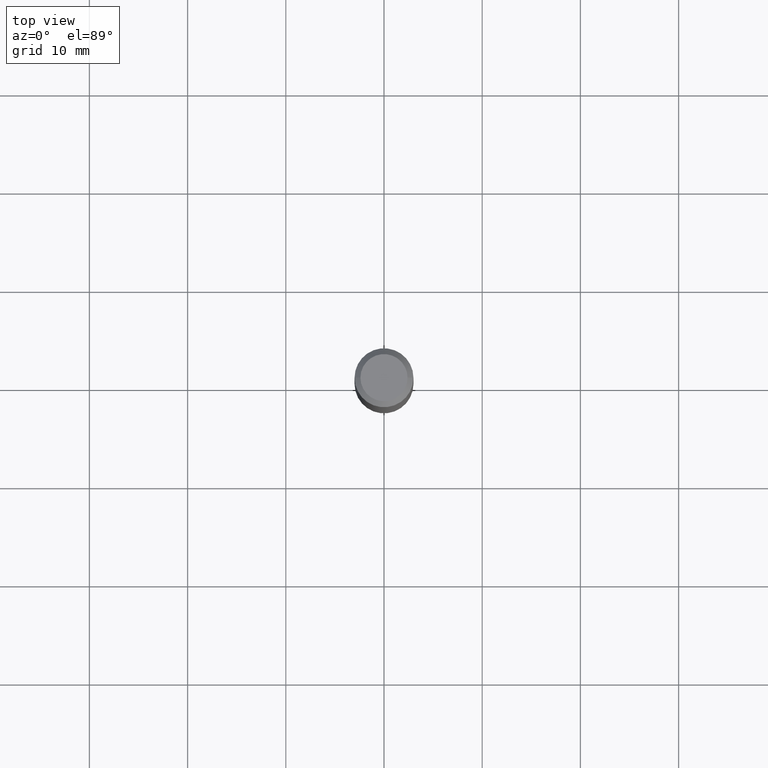
[diagram: clean part render]
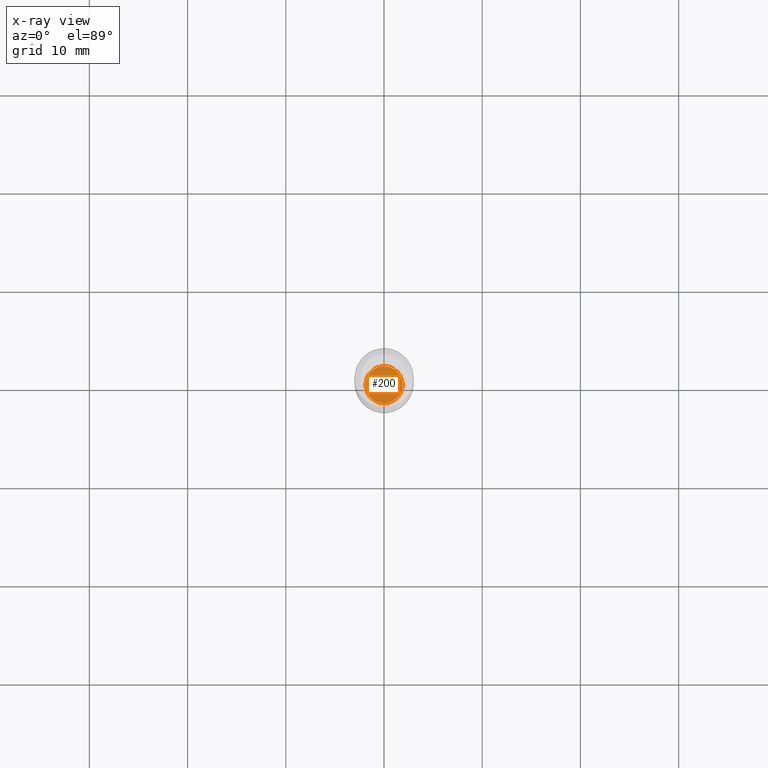
[diagram: x-ray — body ghosted, one internal face saturated and labeled with its STEP entity id]
A machine part, top view, then the same camera in x-ray: the body is ghosted and one INTERNAL B-rep face — a face not visible from any outside direction — is saturated and labeled: STEP entity #200.
In plain terms, the highlighted planar face has unit normal (-0, 0, 1).
Its self-contained STEP definition (entity closure, byte-faithful):
#13 = CARTESIAN_POINT ( 'NONE',  ( 4.024508014338879870E-29, -5.745930839334164827E-15, -1.645700000000000163 ) ) ;
#58 = DIRECTION ( 'NONE',  ( -2.438088387897960049E-29, 3.491481338843145188E-15, 1.000000000000000000 ) ) ;
#65 = PLANE ( 'NONE',  #435 ) ;
#69 = AXIS2_PLACEMENT_3D ( 'NONE', #473, #180, #460 ) ;
#88 = VERTEX_POINT ( 'NONE', #171 ) ;
#89 = CIRCLE ( 'NONE', #69, 0.07430000000000000493 ) ;
#99 = CIRCLE ( 'NONE', #447, 0.07430000000000000493 ) ;
#154 = EDGE_CURVE ( 'NONE', #272, #88, #89, .T. ) ;
#171 = CARTESIAN_POINT ( 'NONE',  ( 0.07430000000000000493, -6.264764966286254620E-15, -1.645700000000000163 ) ) ;
#180 = DIRECTION ( 'NONE',  ( -2.445468806185136597E-29, 3.491481338843145583E-15, 1.000000000000000000 ) ) ;
#200 = ADVANCED_FACE ( 'NONE', ( #287 ), #65, .F. ) ;
#222 = DIRECTION ( 'NONE',  ( -2.445468806185136597E-29, 3.491481338843145583E-15, 1.000000000000000000 ) ) ;
#255 = ORIENTED_EDGE ( 'NONE', *, *, #154, .F. ) ;
#272 = VERTEX_POINT ( 'NONE', #405 ) ;
#275 = ORIENTED_EDGE ( 'NONE', *, *, #390, .F. ) ;
#287 = FACE_OUTER_BOUND ( 'NONE', #476, .T. ) ;
#389 = DIRECTION ( 'NONE',  ( 1.000000000000000000, -6.982962677686268288E-15, 0.000000000000000000 ) ) ;
#390 = EDGE_CURVE ( 'NONE', #88, #272, #99, .T. ) ;
#400 = CARTESIAN_POINT ( 'NONE',  ( 4.024508014338879870E-29, -5.745930839334164827E-15, -1.645700000000000163 ) ) ;
#405 = CARTESIAN_POINT ( 'NONE',  ( -0.07430000000000000493, -5.215348359490299745E-15, -1.645700000000000163 ) ) ;
#408 = DIRECTION ( 'NONE',  ( 1.000000000000000000, -6.982962677686265922E-15, 4.876176775795935793E-29 ) ) ;
#435 = AXIS2_PLACEMENT_3D ( 'NONE', #400, #58, #408 ) ;
#447 = AXIS2_PLACEMENT_3D ( 'NONE', #13, #222, #389 ) ;
#460 = DIRECTION ( 'NONE',  ( 1.000000000000000000, -6.982962677686268288E-15, 0.000000000000000000 ) ) ;
#473 = CARTESIAN_POINT ( 'NONE',  ( 4.024508014338879870E-29, -5.745930839334164827E-15, -1.645700000000000163 ) ) ;
#476 = EDGE_LOOP ( 'NONE', ( #275, #255 ) ) ;